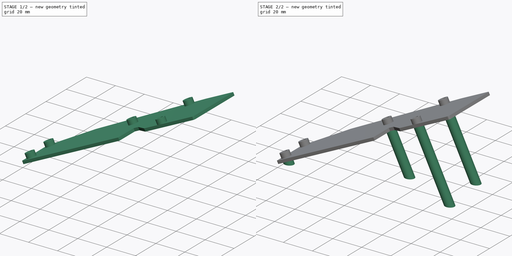
[diagram: build sequence overview — one tinted view per stage of 2, left to right]
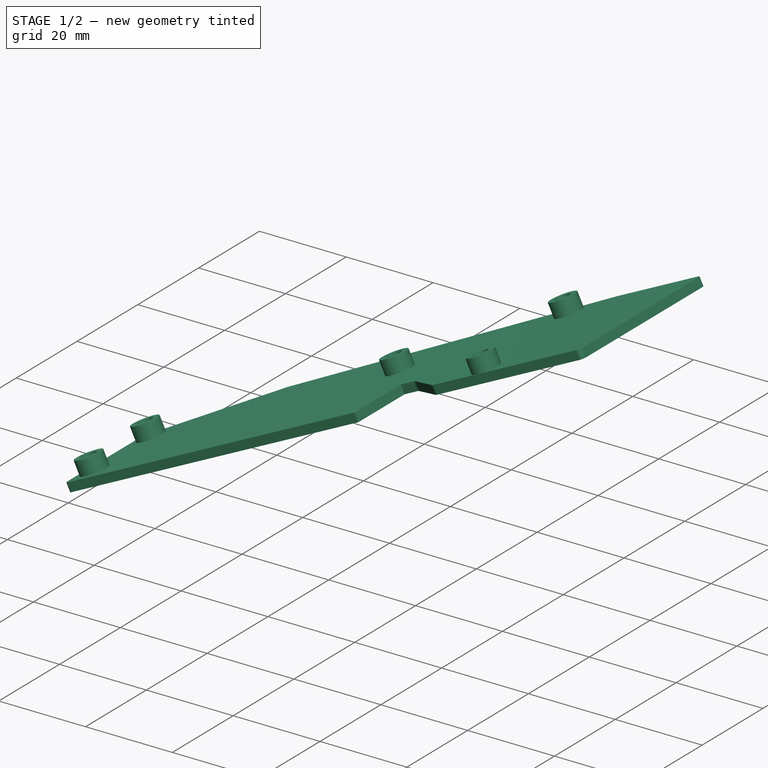
[diagram: stage 1 of 2 — iso view after this stage's code; geometry added in this stage tinted green]
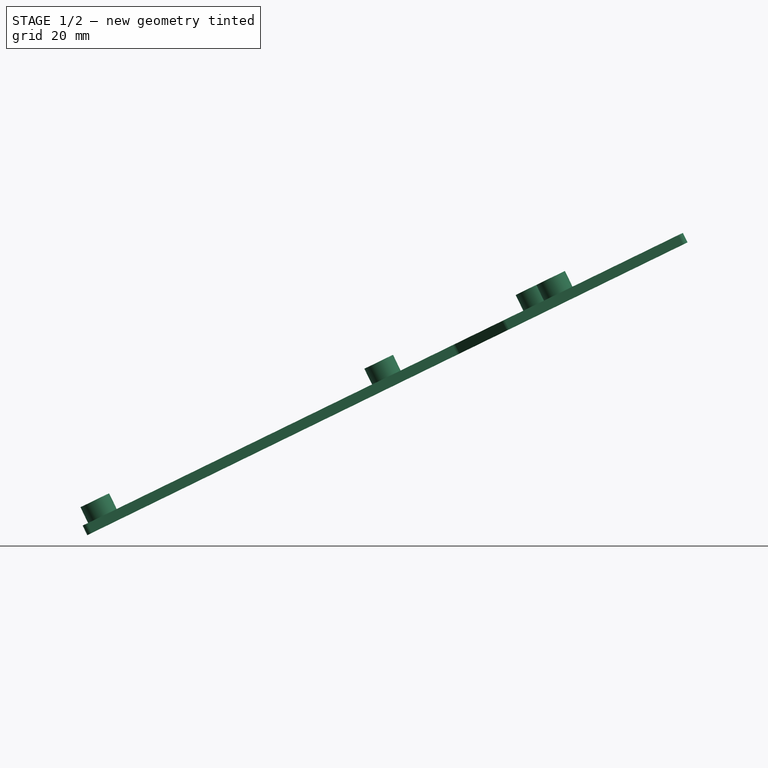
[diagram: stage 1 of 2 — front view after this stage's code; geometry added in this stage tinted green]
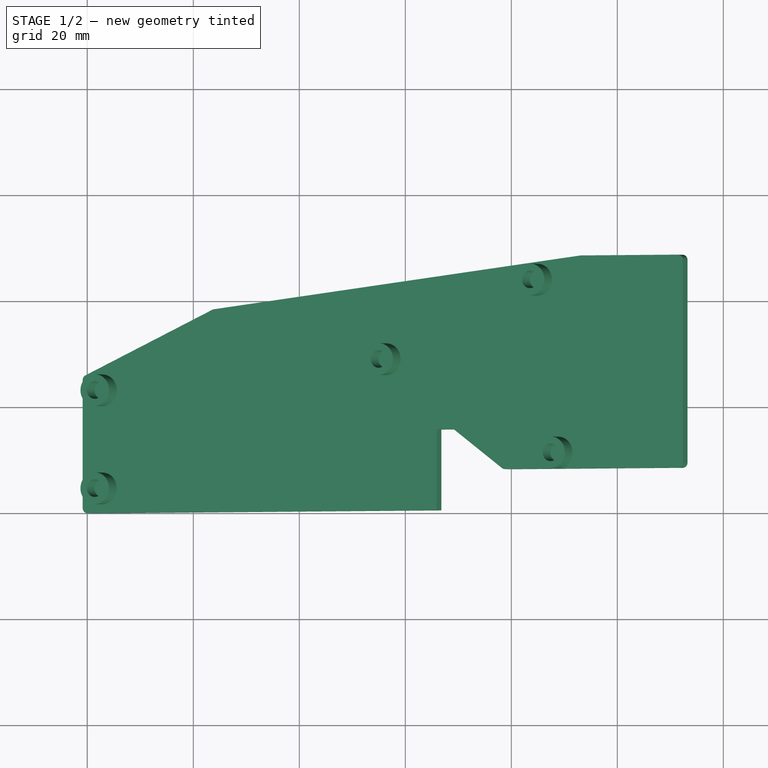
[diagram: stage 1 of 2 — top view after this stage's code; geometry added in this stage tinted green]
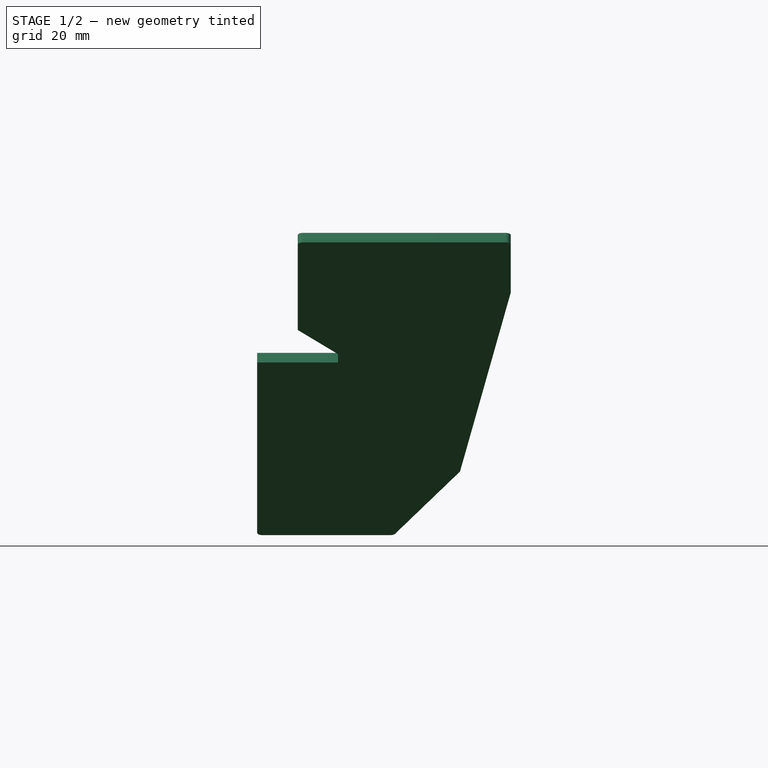
[diagram: stage 1 of 2 — right view after this stage's code; geometry added in this stage tinted green]
FCSTD DOCUMENT  (FreeCAD 1.0RUnknown)
Label: case-tented
License: All rights reserved
LicenseURL: https://en.wikipedia.org/wiki/All_rights_reserved
objects: Sketcher::SketchObject×8, PartDesign::Pad×3, PartDesign::Plane×2, PartDesign::Body×1, App::Part×1
note: 28 computed .brp shape members not serialized (recipe doc carries the construction recipe); baked Part::Feature solids carry a one-line shape summary decoded from their .brp

FEATURE [PartDesign::Plane] DatumPlane  label="tilt plane"
  AttachmentOffset = pos=(0,0,0) rot=(0,-1,0;0.453786rad)
  AttachmentSupport = -> [XY_Plane001]
  Length = 213.616
  MapMode = 5
  Placement = pos=(0,0,0) rot=(0,-1,0;0.453786rad)
  ResizeMode = 0
  Width = 96.385
FEATURE [Sketcher::SketchObject] PCB_Sketch_f9e4  label="left pcb"
  ArcFitTolerance = 1e-06
  AttachmentSupport = -> [DatumPlane]
  FullyConstrained = false
  MakeInternals = false
  MapMode = 5
  Placement = pos=(0,0,0) rot=(0,-1,0;0.453786rad)
  sketch-geometry (19):
    g0: LineSegment StartX=27.2503 StartY=38.2054 StartZ=0 EndX=0.583058 EndY=26.0175 EndZ=0
    g1: LineSegment StartX=126 StartY=8.65 StartZ=0 EndX=126 EndY=45.95 EndZ=0
    g2: LineSegment StartX=9e-16 StartY=25.1085 StartZ=0 EndX=-2e-16 EndY=1 EndZ=0
    g3: LineSegment StartX=104.439 StartY=47.8424 StartZ=0 EndX=27.5489 EndY=38.289 EndZ=0
    g4: LineSegment StartX=104.562 StartY=47.85 StartZ=0 EndX=125 EndY=47.85 EndZ=0
    g5: LineSegment StartX=125 StartY=7.65 StartZ=0 EndX=88.6266 EndY=7.65 EndZ=0
    g6: LineSegment StartX=1 StartY=0 StartZ=0 EndX=74.3298 EndY=0 EndZ=0
    g7: LineSegment StartX=126 StartY=45.95 StartZ=0 EndX=126 EndY=46.85 EndZ=0
    g8: LineSegment StartX=78.291 StartY=14.9676 StartZ=0 EndX=88.0364 EndY=7.84274 EndZ=0
    g9: ArcOfCircle CenterX=27.666 CenterY=37.2959 CenterZ=0 NormalX=0 NormalY=0 NormalZ=-1 AngleXU=1.14211 Radius=1.00001 StartAngle=0 EndAngle=0.311303
    g10: ArcOfCircle CenterX=125 CenterY=46.85 CenterZ=0 NormalX=0 NormalY=0 NormalZ=-1 AngleXU=1.5708 Radius=0.999999 StartAngle=0 EndAngle=1.5708
    g11: ArcOfCircle CenterX=125 CenterY=8.65 CenterZ=0 NormalX=0 NormalY=0 NormalZ=-1 AngleXU=3.14159 Radius=0.999999 StartAngle=0 EndAngle=1.5708
    g12: ArcOfCircle CenterX=88.6266 CenterY=8.65 CenterZ=0 NormalX=0 NormalY=0 NormalZ=-1 AngleXU=-1.57079 Radius=1 StartAngle=0 EndAngle=0.631296
    g13: ArcOfCircle CenterX=104.562 CenterY=46.8498 CenterZ=0 NormalX=0 NormalY=0 NormalZ=-1 AngleXU=1.44719 Radius=1.00016 StartAngle=0 EndAngle=0.123594
    g14: ArcOfCircle CenterX=0.999999 CenterY=0.999999 CenterZ=0 NormalX=0 NormalY=0 NormalZ=-1 AngleXU=-1.5708 Radius=0.999999 StartAngle=0 EndAngle=1.5708
    g15: ArcOfCircle CenterX=1.00007 CenterY=25.1085 CenterZ=0 NormalX=0 NormalY=0 NormalZ=-1 AngleXU=4.52044e-05 Radius=1.00007 StartAngle=0 EndAngle=1.14063
    g16: ArcOfCircle CenterX=77.5946 CenterY=14.25 CenterZ=0 NormalX=0 NormalY=0 NormalZ=-1 AngleXU=1.57078 Radius=0.999961 StartAngle=0 EndAngle=0.770416
    g17: LineSegment StartX=74.3298 StartY=15.25 StartZ=0 EndX=77.5946 EndY=15.25 EndZ=0
    g18: LineSegment StartX=74.3298 StartY=15.25 StartZ=0 EndX=74.3298 EndY=0 EndZ=0
  constraints (23):
    c: Coincident(g2,g14)
    c: Coincident(g2,g15)
    c: Coincident(g0,g15)
    c: Coincident(g6,g14)
    c: Coincident(g0,g9)
    c: Coincident(g3,g9)
    c: Coincident(g8,g16)
    c: Coincident(g8,g12)
    c: Coincident(g5,g12)
    c: Coincident(g3,g13)
    c: Coincident(g4,g13)
    c: Coincident(g5,g11)
    c: Coincident(g4,g10)
    c: Coincident(g1,g11)
    c: Coincident(g1,g7)
    c: Coincident(g7,g10)
    c: Coincident(g17,g16)
    c: Horizontal(g17)
    c: Horizontal(g6)
    c: PointOnObject(g6,g-1)
    c: Coincident(g18,g17)
    c: Coincident(g18,g6)
    c: Vertical(g18)
FEATURE [PartDesign::Pad] Pad
  Direction = (-0.438371,0,0.898794)
  Length = 2
  Length2 = 10
  Placement = pos=(0,0,0) rot=(0,-1,0;0.453786rad)
  Profile = -> PCB_Sketch_f9e4
  ReferenceAxis = -> PCB_Sketch_f9e4 [N_Axis]
  Refine = true
  Suppressed = false
  Type = 0
FEATURE [Sketcher::SketchObject] PCB_Sketch_f9e005  label="left holes"
  ArcFitTolerance = 1e-06
  AttachmentSupport = -> [Pad]
  FullyConstrained = false
  MakeInternals = false
  MapMode = 5
  Placement = pos=(-0.876742,-3e-16,1.79759) rot=(0,-1,0;0.453786rad)
  sketch-geometry (10):
    g0: Circle CenterX=4.15 CenterY=23.1667 CenterZ=0 NormalX=0 NormalY=0 NormalZ=1 AngleXU=0 Radius=3
    g1: Circle CenterX=4.15 CenterY=4.65 CenterZ=0 NormalX=0 NormalY=0 NormalZ=1 AngleXU=0 Radius=3
    g2: Circle CenterX=95.5 CenterY=43.35 CenterZ=0 NormalX=0 NormalY=0 NormalZ=1 AngleXU=0 Radius=3
    g3: Circle CenterX=99.8333 CenterY=10.6833 CenterZ=0 NormalX=0 NormalY=0 NormalZ=1 AngleXU=0 Radius=3
    g4: Circle CenterX=95.5 CenterY=43.35 CenterZ=0 NormalX=0 NormalY=0 NormalZ=1 AngleXU=0 Radius=1.65
    g5: Circle CenterX=99.8333 CenterY=10.6833 CenterZ=0 NormalX=0 NormalY=0 NormalZ=1 AngleXU=0 Radius=1.65
    g6: Circle CenterX=4.15 CenterY=23.1667 CenterZ=0 NormalX=0 NormalY=0 NormalZ=1 AngleXU=0 Radius=1.65
    g7: Circle CenterX=4.15 CenterY=4.65 CenterZ=0 NormalX=0 NormalY=0 NormalZ=1 AngleXU=0 Radius=1.65
    g8: Circle CenterX=63.7513 CenterY=28.5743 CenterZ=0 NormalX=0 NormalY=0 NormalZ=1 AngleXU=0 Radius=3
    g9: Circle CenterX=63.7513 CenterY=28.5743 CenterZ=0 NormalX=0 NormalY=0 NormalZ=1 AngleXU=0 Radius=1.65
  constraints (15):
    c: Diameter(g0) = 6
    c: Diameter(g1) = 6
    c: Diameter(g2) = 6
    c: Diameter(g3) = 6
    c: Diameter(g4) = 3.3
    c: Coincident(g4,g2)
    c: Diameter(g5) = 3.3
    c: Coincident(g5,g3)
    c: Diameter(g6) = 3.3
    c: Coincident(g6,g0)
    c: Diameter(g7) = 3.3
    c: Coincident(g7,g1)
    c: Diameter(g8) = 6
    c: Diameter(g9) = 3.3
    c: Coincident(g9,g8)
FEATURE [PartDesign::Pad] Pad001
  BaseFeature = -> Pad
  Direction = (-0.438371,0,0.898794)
  Length = 3.3
  Length2 = 10
  Placement = pos=(0,0,0) rot=(0,-1,0;0.453786rad)
  Profile = -> PCB_Sketch_f9e005
  ReferenceAxis = -> PCB_Sketch_f9e005 [N_Axis]
  Refine = true
  Suppressed = false
  Type = 0
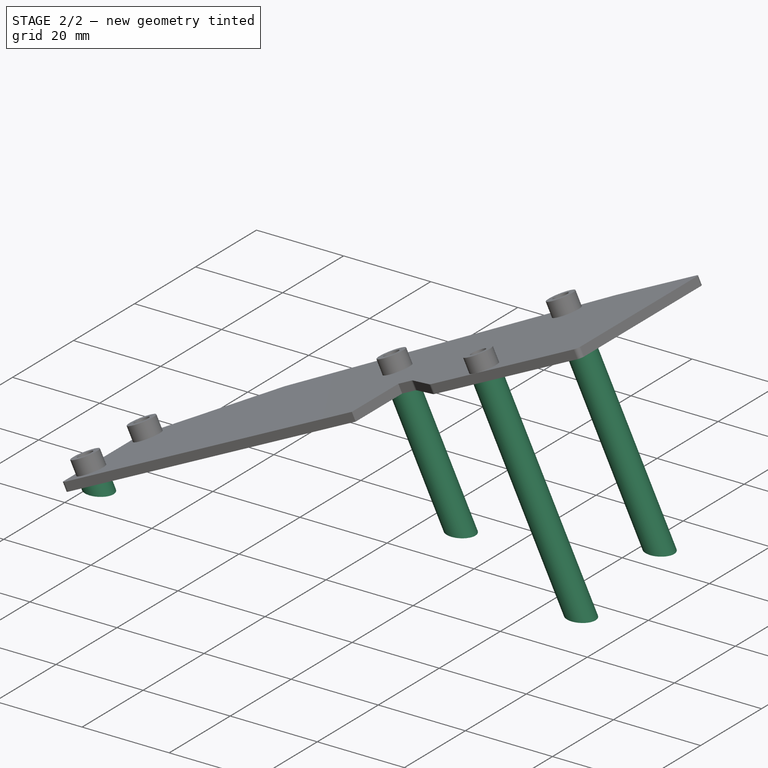
[diagram: stage 2 of 2 — iso view after this stage's code; geometry added in this stage tinted green]
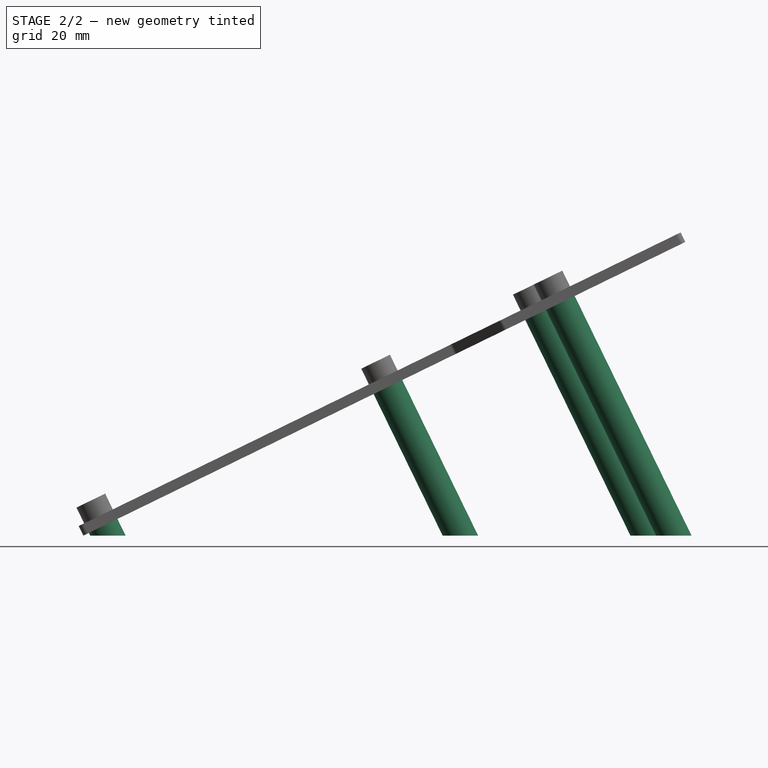
[diagram: stage 2 of 2 — front view after this stage's code; geometry added in this stage tinted green]
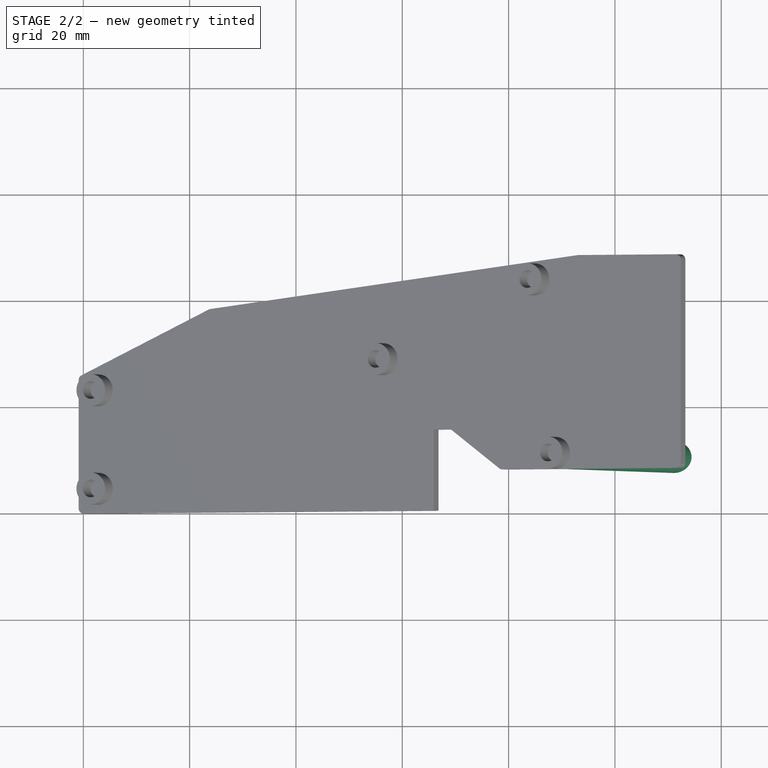
[diagram: stage 2 of 2 — top view after this stage's code; geometry added in this stage tinted green]
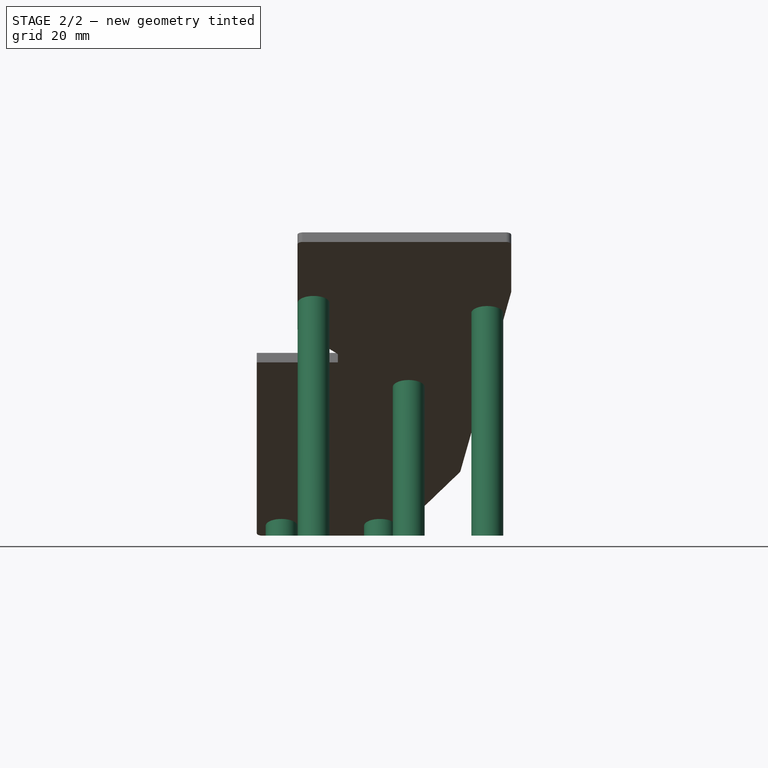
[diagram: stage 2 of 2 — right view after this stage's code; geometry added in this stage tinted green]
FEATURE [PartDesign::Plane] DatumPlane001  label="ground plane"
  AttachmentSupport = -> [XY_Plane001]
  Length = 181.843
  MapMode = 5
  ResizeMode = 0
  Width = 94.4584
FEATURE [Sketcher::SketchObject] PCB_Sketch_f9e006  label="left holes001"
  ArcFitTolerance = 1e-06
  AttachmentSupport = -> [DatumPlane]
  FullyConstrained = false
  MakeInternals = false
  MapMode = 5
  Placement = pos=(0,0,0) rot=(0,-1,0;0.453786rad)
  sketch-geometry (10):
    g0: Circle CenterX=4.15 CenterY=23.1667 CenterZ=0 NormalX=0 NormalY=0 NormalZ=1 AngleXU=0 Radius=3
    g1: Circle CenterX=4.15 CenterY=4.65 CenterZ=0 NormalX=0 NormalY=0 NormalZ=1 AngleXU=0 Radius=3
    g2: Circle CenterX=95.5 CenterY=43.35 CenterZ=0 NormalX=0 NormalY=0 NormalZ=1 AngleXU=0 Radius=3
    g3: Circle CenterX=99.8333 CenterY=10.6833 CenterZ=0 NormalX=0 NormalY=0 NormalZ=1 AngleXU=0 Radius=3
    g4: Circle CenterX=95.5 CenterY=43.35 CenterZ=0 NormalX=0 NormalY=0 NormalZ=1 AngleXU=0 Radius=1.65
    g5: Circle CenterX=99.8333 CenterY=10.6833 CenterZ=0 NormalX=0 NormalY=0 NormalZ=1 AngleXU=0 Radius=1.65
    g6: Circle CenterX=4.15 CenterY=23.1667 CenterZ=0 NormalX=0 NormalY=0 NormalZ=1 AngleXU=0 Radius=1.65
    g7: Circle CenterX=4.15 CenterY=4.65 CenterZ=0 NormalX=0 NormalY=0 NormalZ=1 AngleXU=0 Radius=1.65
    g8: Circle CenterX=63.7513 CenterY=28.5743 CenterZ=0 NormalX=0 NormalY=0 NormalZ=1 AngleXU=0 Radius=3
    g9: Circle CenterX=63.7513 CenterY=28.5743 CenterZ=0 NormalX=0 NormalY=0 NormalZ=1 AngleXU=0 Radius=1.65
  constraints (15):
    c: Diameter(g0) = 6
    c: Diameter(g1) = 6
    c: Diameter(g2) = 6
    c: Diameter(g3) = 6
    c: Diameter(g4) = 3.3
    c: Coincident(g4,g2)
    c: Diameter(g5) = 3.3
    c: Coincident(g5,g3)
    c: Diameter(g6) = 3.3
    c: Coincident(g6,g0)
    c: Diameter(g7) = 3.3
    c: Coincident(g7,g1)
    c: Diameter(g8) = 6
    c: Diameter(g9) = 3.3
    c: Coincident(g9,g8)
FEATURE [Sketcher::SketchObject] Sketch003  label="thumbstick-holes"
  ArcFitTolerance = 1e-06
  FullyConstrained = true
  MakeInternals = false
  MapMode = 5
  sketch-geometry (24):
    g0: LineSegment [constr] StartX=9.21 StartY=27.46 StartZ=0 EndX=15.21 EndY=27.46 EndZ=0
    g1: LineSegment [constr] StartX=15.21 StartY=27.46 StartZ=0 EndX=15.21 EndY=33.46 EndZ=0
    g2: LineSegment [constr] StartX=15.21 StartY=33.46 StartZ=0 EndX=9.21 EndY=33.46 EndZ=0
    g3: LineSegment [constr] StartX=9.21 StartY=33.46 StartZ=0 EndX=9.21 EndY=27.46 EndZ=0
    g4: GeomPoint [constr] X=12.21 Y=30.46 Z=0
    g5: LineSegment [constr] StartX=-23.46 StartY=27.46 StartZ=0 EndX=-17.46 EndY=27.46 EndZ=0
    g6: LineSegment [constr] StartX=-17.46 StartY=27.46 StartZ=0 EndX=-17.46 EndY=33.46 EndZ=0
    g7: LineSegment [constr] StartX=-17.46 StartY=33.46 StartZ=0 EndX=-23.46 EndY=33.46 EndZ=0
    g8: LineSegment [constr] StartX=-23.46 StartY=33.46 StartZ=0 EndX=-23.46 EndY=27.46 EndZ=0
    g9: GeomPoint [constr] X=-20.46 Y=30.46 Z=0
    g10: LineSegment [constr] StartX=9.21 StartY=1.14 StartZ=0 EndX=15.21 EndY=1.14 EndZ=0
    g11: LineSegment [constr] StartX=15.21 StartY=1.14 StartZ=0 EndX=15.21 EndY=7.14 EndZ=0
    g12: LineSegment [constr] StartX=15.21 StartY=7.14 StartZ=0 EndX=9.21 EndY=7.14 EndZ=0
    g13: LineSegment [constr] StartX=9.21 StartY=7.14 StartZ=0 EndX=9.21 EndY=1.14 EndZ=0
    g14: GeomPoint [constr] X=12.21 Y=4.14 Z=0
    g15: LineSegment [constr] StartX=-23.46 StartY=1.14 StartZ=0 EndX=-17.46 EndY=1.14 EndZ=0
    g16: LineSegment [constr] StartX=-17.46 StartY=1.14 StartZ=0 EndX=-17.46 EndY=7.14 EndZ=0
    g17: LineSegment [constr] StartX=-17.46 StartY=7.14 StartZ=0 EndX=-23.46 EndY=7.14 EndZ=0
    g18: LineSegment [constr] StartX=-23.46 StartY=7.14 StartZ=0 EndX=-23.46 EndY=1.14 EndZ=0
    g19: GeomPoint [constr] X=-20.46 Y=4.14 Z=0
    g20: Circle CenterX=-17.46 CenterY=27.46 CenterZ=0 NormalX=0 NormalY=0 NormalZ=1 AngleXU=0 Radius=3
    g21: Circle CenterX=9.21 CenterY=27.46 CenterZ=0 NormalX=0 NormalY=0 NormalZ=1 AngleXU=0 Radius=3
    g22: Circle CenterX=9.21 CenterY=7.14 CenterZ=0 NormalX=0 NormalY=0 NormalZ=1 AngleXU=0 Radius=3
    g23: Circle CenterX=-17.46 CenterY=7.14 CenterZ=0 NormalX=0 NormalY=0 NormalZ=1 AngleXU=0 Radius=3
  constraints (56):
    c: Coincident(g0,g1)
    c: Coincident(g1,g2)
    c: Coincident(g2,g3)
    c: Coincident(g3,g0)
    c: Horizontal(g0)
    c: Horizontal(g2)
    c: Vertical(g1)
    c: Vertical(g3)
    c: Symmetric(g2,g0,g4)
    c: Distance(g1,g3) = 6
    c: Distance(g0,g2) = 6
    c: Coincident(g4,g-6)
    c: Coincident(g5,g6)
    c: Coincident(g6,g7)
    c: Coincident(g7,g8)
    c: Coincident(g8,g5)
    c: Horizontal(g5)
    c: Horizontal(g7)
    c: Vertical(g6)
    c: Vertical(g8)
    c: Symmetric(g7,g5,g9)
    c: Distance(g6,g8) = 6
    c: Distance(g5,g7) = 6
    c: Coincident(g9,g-4)
    c: Coincident(g10,g11)
    c: Coincident(g11,g12)
    c: Coincident(g12,g13)
    c: Coincident(g13,g10)
    c: Horizontal(g10)
    c: Horizontal(g12)
    c: Vertical(g11)
    c: Vertical(g13)
    c: Symmetric(g12,g10,g14)
    c: Distance(g11,g13) = 6
    c: Distance(g10,g12) = 6
    c: Coincident(g14,g-6)
    c: Coincident(g15,g16)
    c: Coincident(g16,g17)
    c: Coincident(g17,g18)
    c: Coincident(g18,g15)
    c: Horizontal(g15)
    c: Horizontal(g17)
    c: Vertical(g16)
    c: Vertical(g18)
    c: Symmetric(g17,g15,g19)
    c: Distance(g16,g18) = 6
    c: Distance(g15,g17) = 6
    c: Coincident(g19,g-5)
    c: Diameter(g20) = 6
    c: Coincident(g20,g5)
    c: Diameter(g21) = 6
    c: Coincident(g21,g0)
    c: Diameter(g22) = 6
    c: Coincident(g22,g12)
    c: Diameter(g23) = 6
    c: Coincident(g23,g16)
FEATURE [Sketcher::SketchObject] PCB_Sketch_58ce  label="thumbpcb"
  ArcFitTolerance = 1e-06
  AttachmentOffset = pos=(25,-4,0) rot=(0,0,1;-0.523599rad)
  FullyConstrained = false
  MakeInternals = false
  MapMode = 5
  sketch-geometry (8):
    g0: LineSegment StartX=21 StartY=44 StartZ=0 EndX=21 EndY=1 EndZ=0
    g1: LineSegment StartX=20 StartY=1e-16 StartZ=0 EndX=1 EndY=0 EndZ=0
    g2: LineSegment StartX=1 StartY=45 StartZ=0 EndX=20 EndY=45 EndZ=0
    g3: LineSegment StartX=1e-16 StartY=1 StartZ=0 EndX=3.3e-15 EndY=44 EndZ=0
    g4: ArcOfCircle CenterX=20 CenterY=44 CenterZ=0 NormalX=0 NormalY=0 NormalZ=-1 AngleXU=1.5708 Radius=0.999999 StartAngle=0 EndAngle=1.5708
    g5: ArcOfCircle CenterX=0.999999 CenterY=0.999999 CenterZ=0 NormalX=0 NormalY=0 NormalZ=-1 AngleXU=-1.5708 Radius=0.999999 StartAngle=0 EndAngle=1.5708
    g6: ArcOfCircle CenterX=20 CenterY=0.999999 CenterZ=0 NormalX=0 NormalY=0 NormalZ=-1 AngleXU=3.14159 Radius=0.999999 StartAngle=0 EndAngle=1.5708
    g7: ArcOfCircle CenterX=0.999999 CenterY=44 CenterZ=0 NormalX=0 NormalY=0 NormalZ=-1 AngleXU=-7.47076e-07 Radius=0.999999 StartAngle=0 EndAngle=1.5708
  constraints (8):
    c: Coincident(g3,g5)
    c: Coincident(g3,g7)
    c: Coincident(g1,g5)
    c: Coincident(g2,g7)
    c: Coincident(g1,g6)
    c: Coincident(g2,g4)
    c: Coincident(g0,g6)
    c: Coincident(g0,g4)
FEATURE [Sketcher::SketchObject] PCB_Sketch_58ce001  label="thumb-holes"
  ArcFitTolerance = 1e-06
  AttachmentOffset = pos=(25,-4,0) rot=(0,0,1;-0.523599rad)
  FullyConstrained = false
  MakeInternals = false
  MapMode = 5
  Placement = pos=(65.2177,-24,37.3718) rot=(0.239119,-0.892404,0.38267;5.06145rad)
  sketch-geometry (8):
    g0: Circle CenterX=3 CenterY=42 CenterZ=0 NormalX=0 NormalY=0 NormalZ=1 AngleXU=0 Radius=3
    g1: Circle CenterX=18 CenterY=42 CenterZ=0 NormalX=0 NormalY=0 NormalZ=1 AngleXU=0 Radius=3
    g2: Circle CenterX=18 CenterY=3 CenterZ=0 NormalX=0 NormalY=0 NormalZ=1 AngleXU=0 Radius=3
    g3: Circle CenterX=3 CenterY=3 CenterZ=0 NormalX=0 NormalY=0 NormalZ=1 AngleXU=0 Radius=3
    g4: Circle CenterX=18 CenterY=3 CenterZ=0 NormalX=0 NormalY=0 NormalZ=1 AngleXU=0 Radius=2
    g5: Circle CenterX=3 CenterY=3 CenterZ=0 NormalX=0 NormalY=0 NormalZ=1 AngleXU=0 Radius=2
    g6: Circle CenterX=18 CenterY=42 CenterZ=0 NormalX=0 NormalY=0 NormalZ=1 AngleXU=0 Radius=2
    g7: Circle CenterX=3 CenterY=42 CenterZ=0 NormalX=0 NormalY=0 NormalZ=1 AngleXU=0 Radius=2
  constraints (12):
    c: Diameter(g0) = 6
    c: Diameter(g1) = 6
    c: Diameter(g2) = 6
    c: Diameter(g3) = 6
    c: Diameter(g4) = 4
    c: Coincident(g4,g2)
    c: Diameter(g5) = 4
    c: Coincident(g5,g3)
    c: Diameter(g6) = 4
    c: Coincident(g6,g1)
    c: Diameter(g7) = 4
    c: Coincident(g7,g0)
FEATURE [Sketcher::SketchObject] Sketch
  ArcFitTolerance = 1e-06
  FullyConstrained = true
  MakeInternals = false
  MapMode = 5
  Placement = pos=(3.1e-15,0,-6.4e-15) rot=(0.97437,0,0.224951;3.14159rad)
FEATURE [PartDesign::Pad] Pad002
  BaseFeature = -> Pad001
  Direction = (-0.438371,0,0.898794)
  Length = 10
  Length2 = 10
  Placement = pos=(0,0,0) rot=(0,-1,0;0.453786rad)
  Profile = -> PCB_Sketch_f9e006
  ReferenceAxis = -> PCB_Sketch_f9e006 [N_Axis]
  Refine = true
  Suppressed = false
  Type = 5
  UpToShape = -> [DatumPlane001]
FEATURE [Sketcher::SketchObject] Sketch004
  ArcFitTolerance = 1e-06
  AttachmentSupport = -> [Pad002]
  FullyConstrained = true
  MakeInternals = false
  MapMode = 5
  Placement = pos=(66.8072,0,32.584) rot=(0.468238,0.468238,0.749337;1.85544rad)
FEATURE [PartDesign::Body] Body
  AllowCompound = true
  Group = -> [DatumPlane,PCB_Sketch_f9e005,PCB_Sketch_f9e4,Pad,Pad001,DatumPlane001,PCB_Sketch_f9e006,Sketch003,PCB_Sketch_58ce,PCB_Sketch_58ce001,Sketch,Pad002,Sketch004]
  Origin = -> Origin001
  Tip = -> Pad002
FEATURE [App::Part] Part  label="Case Tented"
  Group = -> [Body]
  Origin = -> Origin
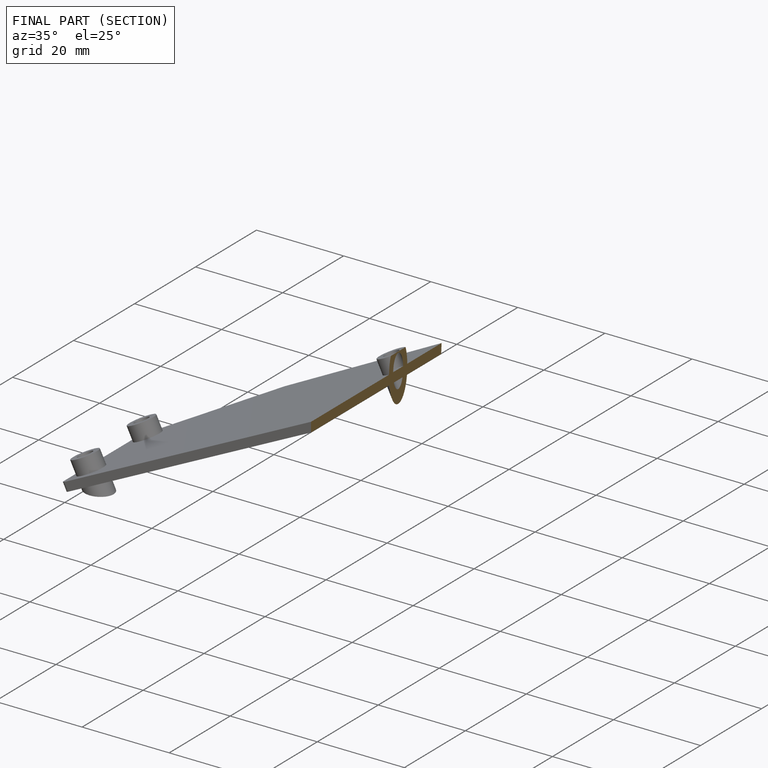
[diagram: finished part — half-section view (interior)]
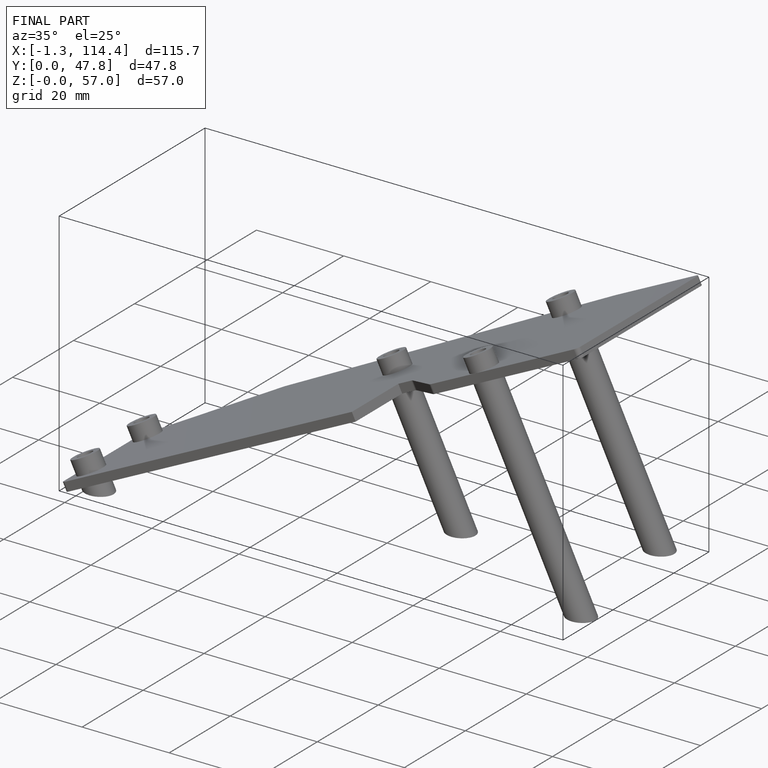
[diagram: finished part — iso view with bounding-box wireframe]
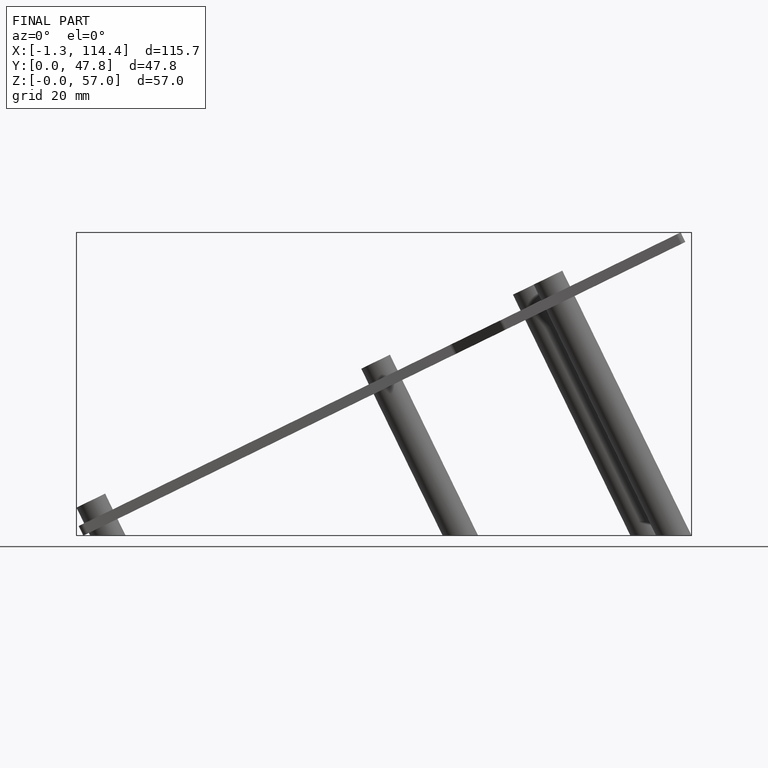
[diagram: finished part — front view with bounding-box wireframe]
